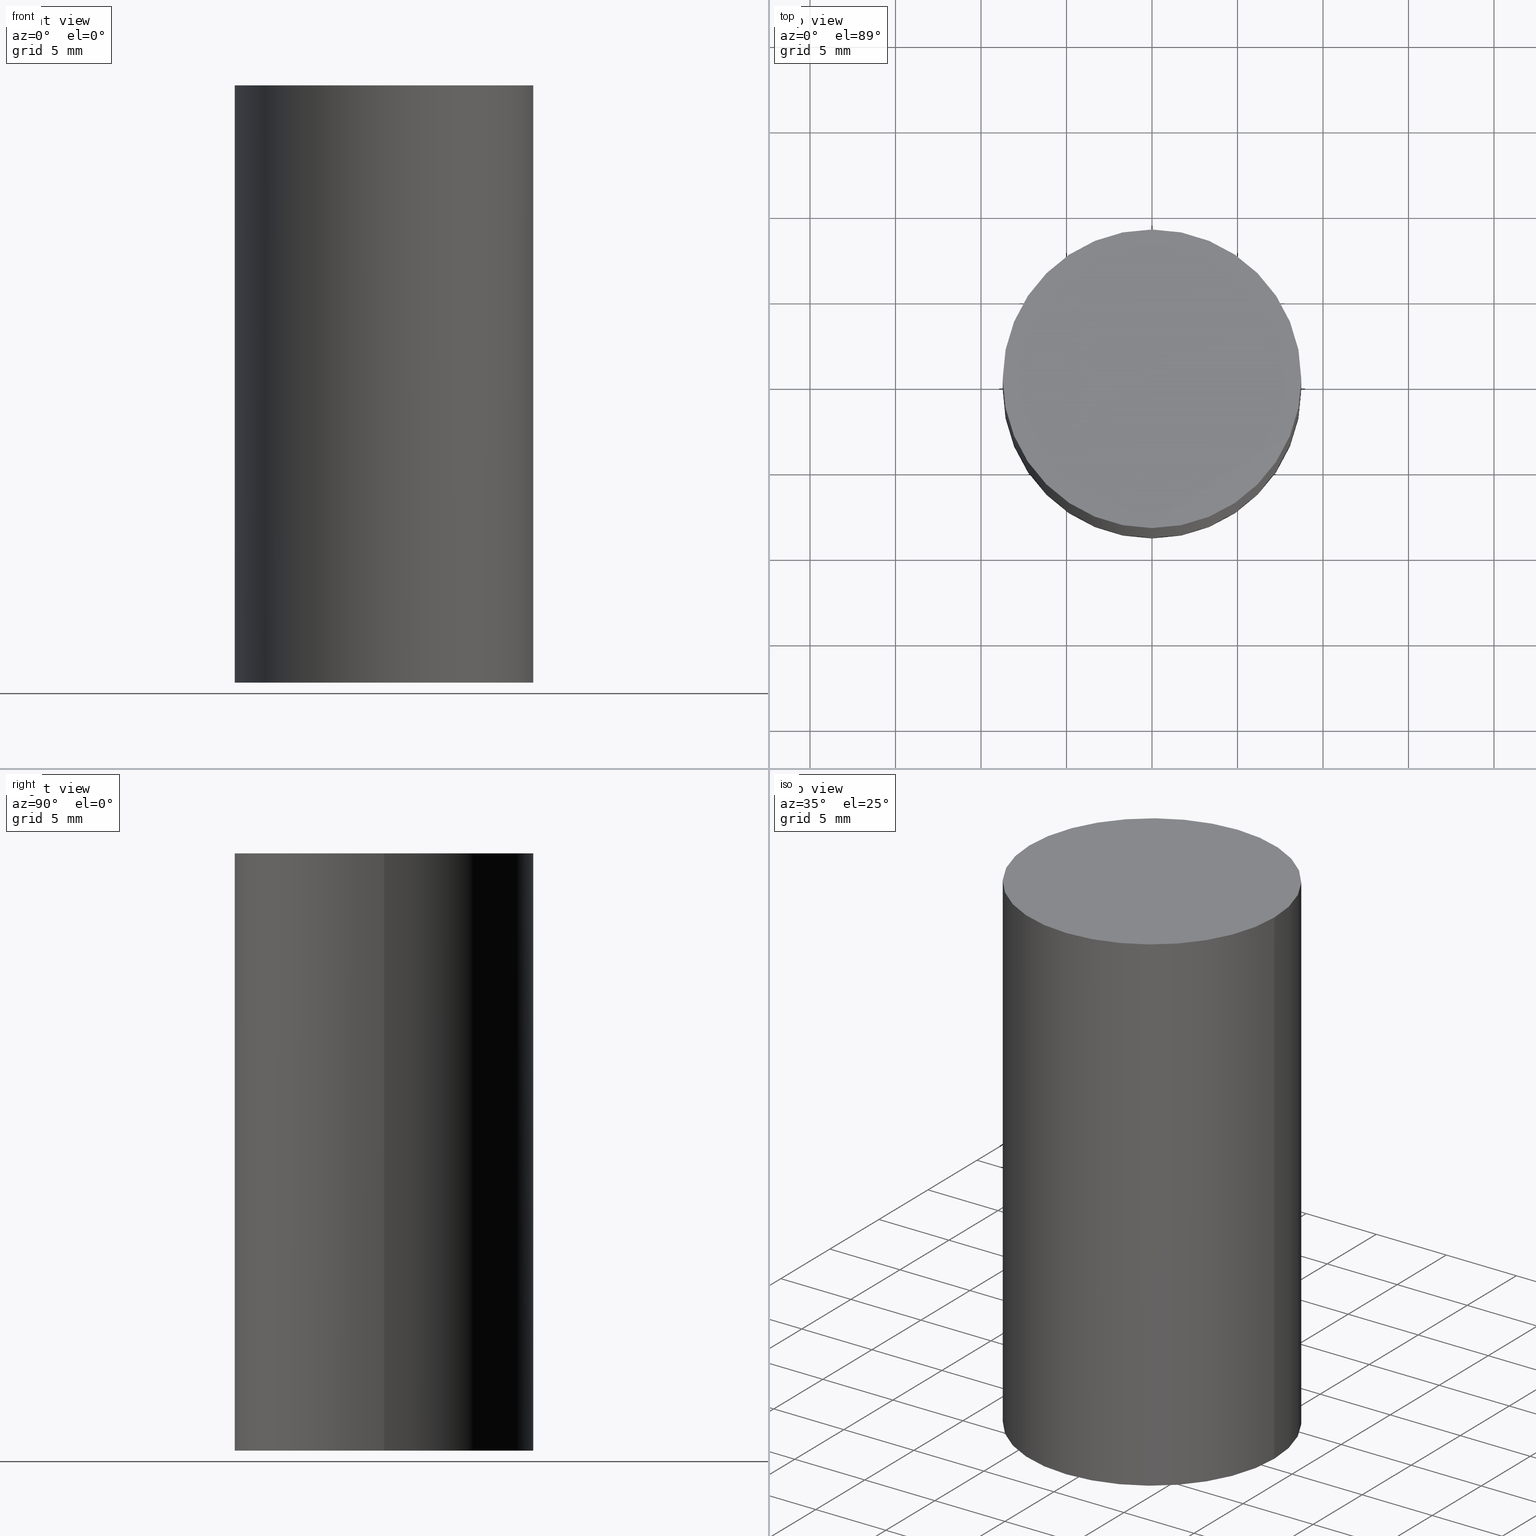
[diagram: canonical four-view strip — front | top / right | iso, engineering-drawing reading convention]
A machine part, canonical four-view strip (front | top / right | iso — engineering-drawing reading convention). The complete STEP part file that produces these views, byte-faithful:
ISO-10303-21;
HEADER;
FILE_DESCRIPTION (( 'STEP AP203' ),
    '1' );
FILE_NAME ('39569.STEP',
    '2024-03-12T19:04:00',
    ( '' ),
    ( '' ),
    'SwSTEP 2.0',
    'SolidWorks 2023',
    '' );
FILE_SCHEMA (( 'CONFIG_CONTROL_DESIGN' ));
ENDSEC;

DATA;
#1 = LOCAL_TIME ( 15, 4, 0.000000000000000000, #72 ) ;
#2 = PERSON_AND_ORGANIZATION_ROLE ( 'creator' ) ;
#3 = LENGTH_MEASURE_WITH_UNIT ( LENGTH_MEASURE( 0.02539999999999999897 ), #56 );
#4 = ADVANCED_FACE ( 'NONE', ( #46 ), #105, .T. ) ;
#5 = DIRECTION ( 'NONE',  ( 1.000000000000000000, 0.000000000000000000, 0.000000000000000000 ) ) ;
#6 = CARTESIAN_POINT ( 'NONE',  ( 3.056836007731426351E-30, -4.364351673553940360E-16, -0.1250000000000002498 ) ) ;
#7 = ORIENTED_EDGE ( 'NONE', *, *, #148, .T. ) ;
#8 = COORDINATED_UNIVERSAL_TIME_OFFSET ( 5, 0, .BEHIND. ) ;
#9 = AXIS2_PLACEMENT_3D ( 'NONE', #104, #147, #93 ) ;
#10 = DIRECTION ( 'NONE',  ( 1.000000000000000000, -6.982962677686265922E-15, 0.000000000000000000 ) ) ;
#11 = ORIENTED_EDGE ( 'NONE', *, *, #43, .F. ) ;
#12 = LOCAL_TIME ( 15, 4, 0.000000000000000000, #116 ) ;
#13 = APPLICATION_CONTEXT ( 'configuration controlled 3d designs of mechanical parts and assemblies' ) ;
#14 = ADVANCED_FACE ( 'NONE', ( #119 ), #134, .T. ) ;
#15 = AXIS2_PLACEMENT_3D ( 'NONE', #24, #154, #33 ) ;
#16 = DIRECTION ( 'NONE',  ( -2.438088387897960049E-29, 3.491481338843145188E-15, 1.000000000000000000 ) ) ;
#17 = DATE_AND_TIME ( #99, #161 ) ;
#18 = APPLICATION_PROTOCOL_DEFINITION ( 'international standard', 'config_control_design', 1994, #138 ) ;
#19 = ADVANCED_FACE ( 'NONE', ( #145 ), #66, .F. ) ;
#20 = APPROVAL_STATUS ( 'not_yet_approved' ) ;
#21 = AXIS2_PLACEMENT_3D ( 'NONE', #6, #49, #63 ) ;
#22 = CALENDAR_DATE ( 2024, 12, 3 ) ;
#23 = CARTESIAN_POINT ( 'NONE',  ( 0.000000000000000000, 0.000000000000000000, 0.000000000000000000 ) ) ;
#24 = CARTESIAN_POINT ( 'NONE',  ( 0.000000000000000000, 0.000000000000000000, 0.000000000000000000 ) ) ;
#25 = DIRECTION ( 'NONE',  ( -2.445468806185136597E-29, 3.491481338843145583E-15, 1.000000000000000000 ) ) ;
#26 = PERSON_AND_ORGANIZATION ( #67, #89 ) ;
#27 = DIRECTION ( 'NONE',  ( -2.445468806185136877E-29, 3.491481338843145188E-15, 1.000000000000000000 ) ) ;
#28 = AXIS2_PLACEMENT_3D ( 'NONE', #125, #16, #128 ) ;
#29 = EDGE_CURVE ( 'NONE', #60, #64, #155, .T. ) ;
#30 = PERSON_AND_ORGANIZATION ( #67, #89 ) ;
#31 = CLOSED_SHELL ( 'NONE', ( #14, #158, #4, #19 ) ) ;
#32 = DATE_AND_TIME ( #22, #36 ) ;
#33 = DIRECTION ( 'NONE',  ( 1.000000000000000000, -6.982962677686265922E-15, 4.876176775795935793E-29 ) ) ;
#34 = CALENDAR_DATE ( 2024, 12, 3 ) ;
#35 = ORIENTED_EDGE ( 'NONE', *, *, #166, .T. ) ;
#36 = LOCAL_TIME ( 15, 4, 0.000000000000000000, #120 ) ;
#37 = CARTESIAN_POINT ( 'NONE',  ( 2.400393420454656943E-15, 0.3437499999999995559, -0.1250000000000014710 ) ) ;
#38 = VECTOR ( 'NONE', #98, 39.37007874015748143 ) ;
#39 = PERSON_AND_ORGANIZATION ( #67, #89 ) ;
#40 = AXIS2_PLACEMENT_3D ( 'NONE', #157, #44, #101 ) ;
#41 = DIRECTION ( 'NONE',  ( -2.445468806185136597E-29, 3.491481338843145583E-15, 1.000000000000000000 ) ) ;
#42 = COORDINATED_UNIVERSAL_TIME_OFFSET ( 5, 0, .BEHIND. ) ;
#43 = EDGE_CURVE ( 'NONE', #60, #106, #73, .T. ) ;
#44 = DIRECTION ( 'NONE',  ( -2.445468806185136597E-29, 3.491481338843145583E-15, 1.000000000000000000 ) ) ;
#45 = PERSON_AND_ORGANIZATION ( #67, #89 ) ;
#46 = FACE_OUTER_BOUND ( 'NONE', #52, .T. ) ;
#47 = SHAPE_DEFINITION_REPRESENTATION ( #127, #174 ) ;
#48 = CALENDAR_DATE ( 2024, 12, 3 ) ;
#49 = DIRECTION ( 'NONE',  ( -2.445468806185136597E-29, 3.491481338843145583E-15, 1.000000000000000000 ) ) ;
#50 = ORIENTED_EDGE ( 'NONE', *, *, #148, .F. ) ;
#51 = UNCERTAINTY_MEASURE_WITH_UNIT (LENGTH_MEASURE( 1.000000000000000082E-05 ), #151, 'distance_accuracy_value', 'NONE');
#52 = EDGE_LOOP ( 'NONE', ( #168, #146, #35, #50 ) ) ;
#53 = CIRCLE ( 'NONE', #21, 0.3437500000000000000 ) ;
#54 = PRODUCT_DEFINITION ( 'UNKNOWN', '', #88, #135 ) ;
#55 = PRODUCT ( '39569', '39569', '', ( #71 ) ) ;
#56 =( LENGTH_UNIT ( ) NAMED_UNIT ( * ) SI_UNIT ( $, .METRE. ) );
#57 = CC_DESIGN_PERSON_AND_ORGANIZATION_ASSIGNMENT ( #123, #2, ( #88 ) ) ;
#58 = APPROVAL_DATE_TIME ( #130, #167 ) ;
#59 = AXIS2_PLACEMENT_3D ( 'NONE', #23, #170, #5 ) ;
#60 = VERTEX_POINT ( 'NONE', #132 ) ;
#61 = APPROVAL_STATUS ( 'not_yet_approved' ) ;
#62 = APPROVAL_ROLE ( '' ) ;
#63 = DIRECTION ( 'NONE',  ( 1.000000000000000000, -6.982962677686265922E-15, 0.000000000000000000 ) ) ;
#64 = VERTEX_POINT ( 'NONE', #121 ) ;
#65 = CC_DESIGN_DATE_AND_TIME_ASSIGNMENT ( #17, #113, ( #54 ) ) ;
#66 = PLANE ( 'NONE',  #133 ) ;
#67 = PERSON ( 'UNSPECIFIED', 'UNSPECIFIED', 'UNSPECIFIED', ('UNSPECIFIED'), ('UNSPECIFIED'), ('UNSPECIFIED') ) ;
#68 = APPROVAL_PERSON_ORGANIZATION ( #30, #167, #62 ) ;
#69 = FACE_OUTER_BOUND ( 'NONE', #79, .T. ) ;
#70 =( NAMED_UNIT ( * ) SI_UNIT ( $, .STERADIAN. ) SOLID_ANGLE_UNIT ( ) );
#71 = MECHANICAL_CONTEXT ( 'NONE', #138, 'mechanical' ) ;
#72 = COORDINATED_UNIVERSAL_TIME_OFFSET ( 5, 0, .BEHIND. ) ;
#73 = CIRCLE ( 'NONE', #112, 0.3437500000000000000 ) ;
#74 = APPROVAL_DATE_TIME ( #87, #164 ) ;
#75 = APPROVAL_ROLE ( '' ) ;
#76 = CARTESIAN_POINT ( 'NONE',  ( 3.668203209277704895E-29, -5.237222008264718177E-15, -1.500000000000000222 ) ) ;
#77 = VERTEX_POINT ( 'NONE', #178 ) ;
#78 = CC_DESIGN_DATE_AND_TIME_ASSIGNMENT ( #32, #84, ( #160 ) ) ;
#79 = EDGE_LOOP ( 'NONE', ( #81, #11 ) ) ;
#80 = CC_DESIGN_APPROVAL ( #167, ( #54 ) ) ;
#81 = ORIENTED_EDGE ( 'NONE', *, *, #139, .F. ) ;
#82 = DIRECTION ( 'NONE',  ( 1.000000000000000000, -6.982962677686265922E-15, 0.000000000000000000 ) ) ;
#83 = EDGE_CURVE ( 'NONE', #77, #64, #53, .T. ) ;
#84 = DATE_TIME_ROLE ( 'classification_date' ) ;
#85 = PERSON_AND_ORGANIZATION_ROLE ( 'design_owner' ) ;
#86 = DIRECTION ( 'NONE',  ( -1.000000000000000000, 6.982962677686265922E-15, -4.876176775795935793E-29 ) ) ;
#87 = DATE_AND_TIME ( #34, #141 ) ;
#88 = PRODUCT_DEFINITION_FORMATION_WITH_SPECIFIED_SOURCE ( 'ANY', '', #55, .NOT_KNOWN. ) ;
#89 = ORGANIZATION ( 'UNSPECIFIED', 'UNSPECIFIED', '' ) ;
#90 = CARTESIAN_POINT ( 'NONE',  ( -0.3437500000000000000, 2.442490654175344389E-15, -1.690883937275123635E-29 ) ) ;
#91 = PERSON_AND_ORGANIZATION_ROLE ( 'classification_officer' ) ;
#92 = ORIENTED_EDGE ( 'NONE', *, *, #166, .F. ) ;
#93 = DIRECTION ( 'NONE',  ( 1.000000000000000000, -6.982962677686265922E-15, 0.000000000000000000 ) ) ;
#94 = PERSON_AND_ORGANIZATION_ROLE ( 'design_supplier' ) ;
#95 = DIMENSIONAL_EXPONENTS ( 1.000000000000000000, 0.000000000000000000, 0.000000000000000000, 0.000000000000000000, 0.000000000000000000, 0.000000000000000000, 0.000000000000000000 ) ;
#96 = LINE ( 'NONE', #162, #38 ) ;
#97 = DATE_AND_TIME ( #144, #1 ) ;
#98 = DIRECTION ( 'NONE',  ( -2.445468806185136877E-29, 3.491481338843145188E-15, 1.000000000000000000 ) ) ;
#99 = CALENDAR_DATE ( 2024, 12, 3 ) ;
#100 = CC_DESIGN_SECURITY_CLASSIFICATION ( #160, ( #88 ) ) ;
#101 = DIRECTION ( 'NONE',  ( 1.000000000000000000, -6.982962677686265922E-15, 4.876176775795935793E-29 ) ) ;
#102 = PRODUCT_RELATED_PRODUCT_CATEGORY ( 'detail', '', ( #55 ) ) ;
#103 = VECTOR ( 'NONE', #27, 39.37007874015748143 ) ;
#104 = CARTESIAN_POINT ( 'NONE',  ( 3.668203209277704895E-29, -5.237222008264718177E-15, -1.500000000000000222 ) ) ;
#105 = CYLINDRICAL_SURFACE ( 'NONE', #40, 0.3437500000000000000 ) ;
#106 = VERTEX_POINT ( 'NONE', #117 ) ;
#107 = APPROVAL_PERSON_ORGANIZATION ( #26, #164, #118 ) ;
#108 = CC_DESIGN_PERSON_AND_ORGANIZATION_ASSIGNMENT ( #45, #85, ( #55 ) ) ;
#109 = APPROVAL_PERSON_ORGANIZATION ( #143, #111, #75 ) ;
#110 = PERSON_AND_ORGANIZATION ( #67, #89 ) ;
#111 = APPROVAL ( #61, 'UNSPECIFIED' ) ;
#112 = AXIS2_PLACEMENT_3D ( 'NONE', #76, #25, #10 ) ;
#113 = DATE_TIME_ROLE ( 'creation_date' ) ;
#114 = ORIENTED_EDGE ( 'NONE', *, *, #29, .T. ) ;
#115 = ORIENTED_EDGE ( 'NONE', *, *, #83, .F. ) ;
#116 = COORDINATED_UNIVERSAL_TIME_OFFSET ( 5, 0, .BEHIND. ) ;
#117 = CARTESIAN_POINT ( 'NONE',  ( 0.3437500000000000000, -7.637615428719372358E-15, -1.500000000000000222 ) ) ;
#118 = APPROVAL_ROLE ( '' ) ;
#119 = FACE_OUTER_BOUND ( 'NONE', #171, .T. ) ;
#120 = COORDINATED_UNIVERSAL_TIME_OFFSET ( 5, 0, .BEHIND. ) ;
#121 = CARTESIAN_POINT ( 'NONE',  ( -0.3437500000000000000, -3.943379336347120132E-16, -0.1250000000000002498 ) ) ;
#122 = CIRCLE ( 'NONE', #163, 0.3437500000000000000 ) ;
#123 = PERSON_AND_ORGANIZATION ( #67, #89 ) ;
#124 = CC_DESIGN_PERSON_AND_ORGANIZATION_ASSIGNMENT ( #39, #94, ( #88 ) ) ;
#125 = CARTESIAN_POINT ( 'NONE',  ( 3.576687321579069994E-29, -5.368277968210015545E-15, -1.500000000000000222 ) ) ;
#126 =( GEOMETRIC_REPRESENTATION_CONTEXT ( 3 ) GLOBAL_UNCERTAINTY_ASSIGNED_CONTEXT ( ( #51 ) ) GLOBAL_UNIT_ASSIGNED_CONTEXT ( ( #151, #140, #70 ) ) REPRESENTATION_CONTEXT ( 'NONE', 'WORKASPACE' ) );
#127 = PRODUCT_DEFINITION_SHAPE ( 'NONE', 'NONE',  #54 ) ;
#128 = DIRECTION ( 'NONE',  ( 1.000000000000000000, -6.982962677686265922E-15, 4.876176775795935793E-29 ) ) ;
#129 = CC_DESIGN_APPROVAL ( #164, ( #160 ) ) ;
#130 = DATE_AND_TIME ( #48, #12 ) ;
#131 = EDGE_LOOP ( 'NONE', ( #177, #7 ) ) ;
#132 = CARTESIAN_POINT ( 'NONE',  ( -0.3437500000000000000, -3.943379336347116681E-16, -1.500000000000000222 ) ) ;
#133 = AXIS2_PLACEMENT_3D ( 'NONE', #37, #159, #86 ) ;
#134 = CYLINDRICAL_SURFACE ( 'NONE', #15, 0.3437500000000000000 ) ;
#135 = DESIGN_CONTEXT ( 'detailed design', #13, 'design' ) ;
#136 = ORIENTED_EDGE ( 'NONE', *, *, #139, .T. ) ;
#137 = CARTESIAN_POINT ( 'NONE',  ( 3.056836007731426351E-30, -4.364351673553940360E-16, -0.1250000000000002498 ) ) ;
#138 = APPLICATION_CONTEXT ( 'configuration controlled 3d designs of mechanical parts and assemblies' ) ;
#139 = EDGE_CURVE ( 'NONE', #106, #60, #175, .T. ) ;
#140 =( NAMED_UNIT ( * ) PLANE_ANGLE_UNIT ( ) SI_UNIT ( $, .RADIAN. ) );
#141 = LOCAL_TIME ( 15, 4, 0.000000000000000000, #8 ) ;
#142 = CC_DESIGN_PERSON_AND_ORGANIZATION_ASSIGNMENT ( #110, #165, ( #54 ) ) ;
#143 = PERSON_AND_ORGANIZATION ( #67, #89 ) ;
#144 = CALENDAR_DATE ( 2024, 12, 3 ) ;
#145 = FACE_OUTER_BOUND ( 'NONE', #131, .T. ) ;
#146 = ORIENTED_EDGE ( 'NONE', *, *, #43, .T. ) ;
#147 = DIRECTION ( 'NONE',  ( -2.445468806185136597E-29, 3.491481338843145583E-15, 1.000000000000000000 ) ) ;
#148 = EDGE_CURVE ( 'NONE', #64, #77, #122, .T. ) ;
#149 = SECURITY_CLASSIFICATION_LEVEL ( 'unclassified' ) ;
#150 = PLANE ( 'NONE',  #28 ) ;
#151 =( CONVERSION_BASED_UNIT ( 'INCH', #3 ) LENGTH_UNIT ( ) NAMED_UNIT ( #95 ) );
#152 = APPROVAL_DATE_TIME ( #97, #111 ) ;
#153 = MANIFOLD_SOLID_BREP ( 'Body-Move/Copy2', #31 ) ;
#154 = DIRECTION ( 'NONE',  ( -2.445468806185136597E-29, 3.491481338843145583E-15, 1.000000000000000000 ) ) ;
#155 = LINE ( 'NONE', #90, #103 ) ;
#156 = CC_DESIGN_APPROVAL ( #111, ( #88 ) ) ;
#157 = CARTESIAN_POINT ( 'NONE',  ( 0.000000000000000000, 0.000000000000000000, 0.000000000000000000 ) ) ;
#158 = ADVANCED_FACE ( 'NONE', ( #69 ), #150, .F. ) ;
#159 = DIRECTION ( 'NONE',  ( 2.438088387897960049E-29, -3.491481338843145188E-15, -1.000000000000000000 ) ) ;
#160 = SECURITY_CLASSIFICATION ( '', '', #149 ) ;
#161 = LOCAL_TIME ( 15, 4, 0.000000000000000000, #42 ) ;
#162 = CARTESIAN_POINT ( 'NONE',  ( 0.3437500000000000000, -2.400393420454653787E-15, 1.676185766679852859E-29 ) ) ;
#163 = AXIS2_PLACEMENT_3D ( 'NONE', #137, #41, #82 ) ;
#164 = APPROVAL ( #169, 'UNSPECIFIED' ) ;
#165 = PERSON_AND_ORGANIZATION_ROLE ( 'creator' ) ;
#166 = EDGE_CURVE ( 'NONE', #106, #77, #96, .T. ) ;
#167 = APPROVAL ( #20, 'UNSPECIFIED' ) ;
#168 = ORIENTED_EDGE ( 'NONE', *, *, #29, .F. ) ;
#169 = APPROVAL_STATUS ( 'not_yet_approved' ) ;
#170 = DIRECTION ( 'NONE',  ( 0.000000000000000000, 0.000000000000000000, 1.000000000000000000 ) ) ;
#171 = EDGE_LOOP ( 'NONE', ( #136, #114, #115, #92 ) ) ;
#172 = PERSON_AND_ORGANIZATION ( #67, #89 ) ;
#173 = APPLICATION_PROTOCOL_DEFINITION ( 'international standard', 'config_control_design', 1994, #13 ) ;
#174 = ADVANCED_BREP_SHAPE_REPRESENTATION ( '39569', ( #153, #59 ), #126 ) ;
#175 = CIRCLE ( 'NONE', #9, 0.3437500000000000000 ) ;
#176 = CC_DESIGN_PERSON_AND_ORGANIZATION_ASSIGNMENT ( #172, #91, ( #160 ) ) ;
#177 = ORIENTED_EDGE ( 'NONE', *, *, #83, .T. ) ;
#178 = CARTESIAN_POINT ( 'NONE',  ( 0.3437500000000000000, -2.836828587810047823E-15, -0.1250000000000002498 ) ) ;
ENDSEC;
END-ISO-10303-21;
